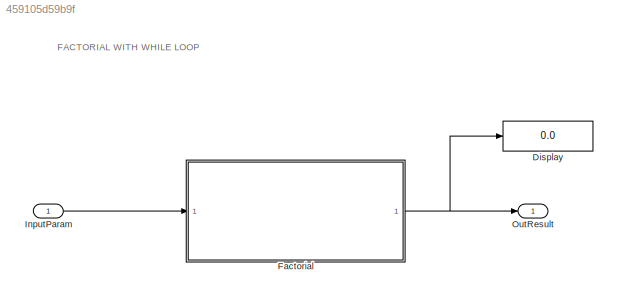
MODEL slx_459105d59b9f
KIND model
CONFIG AbsTol = auto
CONFIG EnableMultiTasking = off
CONFIG FixedStep = auto
CONFIG MaxStep = auto
CONFIG MinStep = auto
CONFIG RelTol = 1e-3
CONFIG SampleTimeConstraint = Unconstrained
CONFIG Solver = FixedStepDiscrete
CONFIG SolverName = FixedStepDiscrete
CONFIG StartTime = 0.0
CONFIG StopTime = 10.0
BLOCK [Display] Display
  Decimation = 1
  Ports = [1]
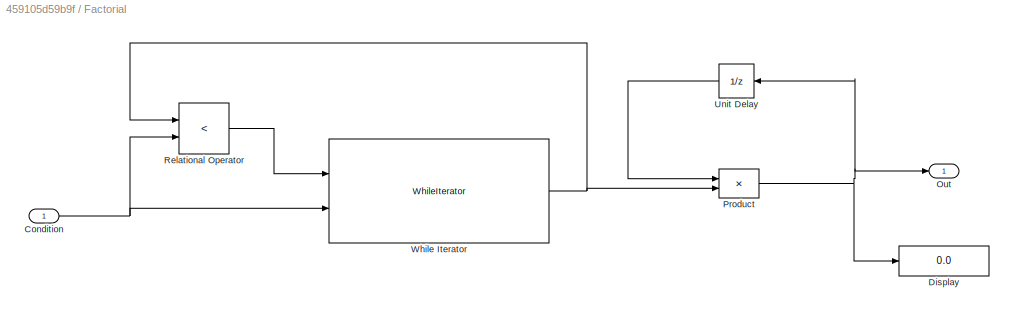
BLOCK [SubSystem] Factorial
  Ports = [1, 1]
  RequestExecContextInheritance = off
  TreatAsAtomicUnit = on
  Variant = off
BLOCK [Inport] Factorial/Condition
  IconDisplay = Port number
BLOCK [Display] Factorial/Display
  Decimation = 1
  Ports = [1]
BLOCK [Outport] Factorial/Out
  IconDisplay = Port number
BLOCK [Product] Factorial/Product
  InputSameDT = off
  OutDataTypeStr = int32
  Ports = [2, 1]
  RndMeth = Floor
  SaturateOnIntegerOverflow = off
BLOCK [RelationalOperator] Factorial/Relational Operator
  InputSameDT = off
  Operator = <
  OutDataTypeStr = boolean
  Ports = [2, 1]
  RndMeth = Simplest
BLOCK [UnitDelay] Factorial/Unit Delay
  InitialCondition = 1
  InputProcessing = Elements as channels (sample based)
  SampleTime = -1
BLOCK [WhileIterator] Factorial/While Iterator
  Ports = [2, 1]
  ResetStates = reset
  ShowIterationPort = on
BLOCK [Inport] InputParam
  IconDisplay = Port number
BLOCK [Outport] OutResult
  IconDisplay = Port number
ANNOTATION (root): FACTORIAL WITH WHILE LOOP
NET Factorial/Condition:1 -> Factorial/Relational Operator:2, Factorial/While Iterator:2
NET Factorial/Product:1 -> Factorial/Display:1, Factorial/Out:1, Factorial/Unit Delay:1
LINE Factorial/Relational Operator:1 -> Factorial/While Iterator:1
LINE Factorial/Unit Delay:1 -> Factorial/Product:1
NET Factorial/While Iterator:1 -> Factorial/Product:2, Factorial/Relational Operator:1
NET Factorial:1 -> Display:1, OutResult:1
LINE InputParam:1 -> Factorial:1
note: NET lines group one-source signal fan-out (src -> all destinations, sorted); 1:1 wires keep LINE
